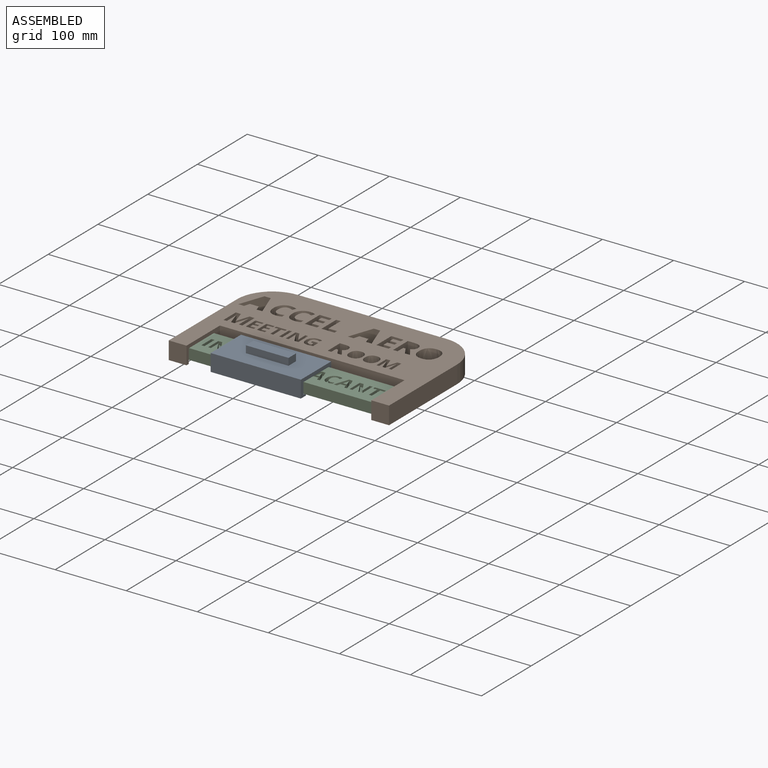
[diagram: assembled view]
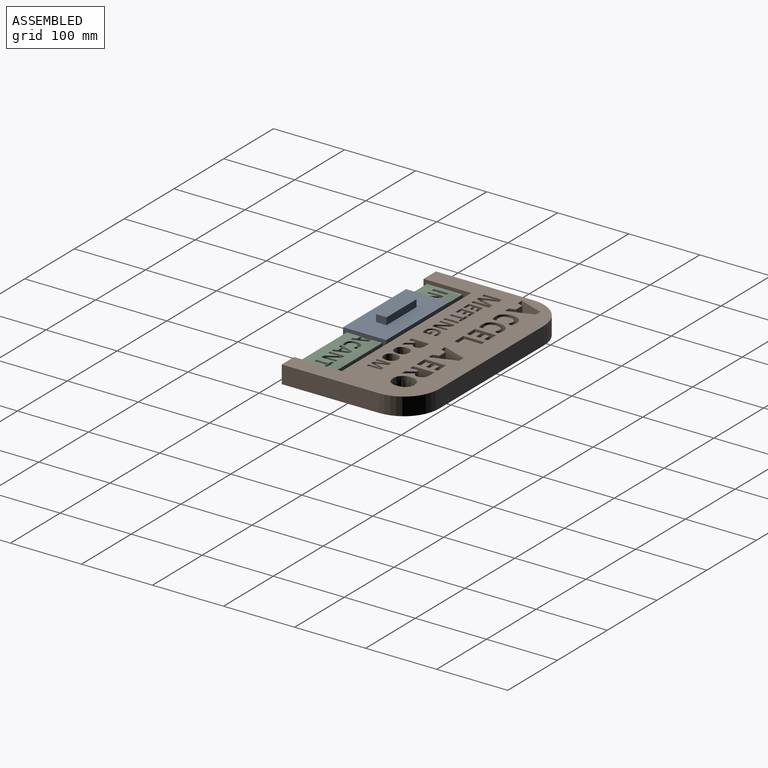
[diagram: assembled view, second angle]
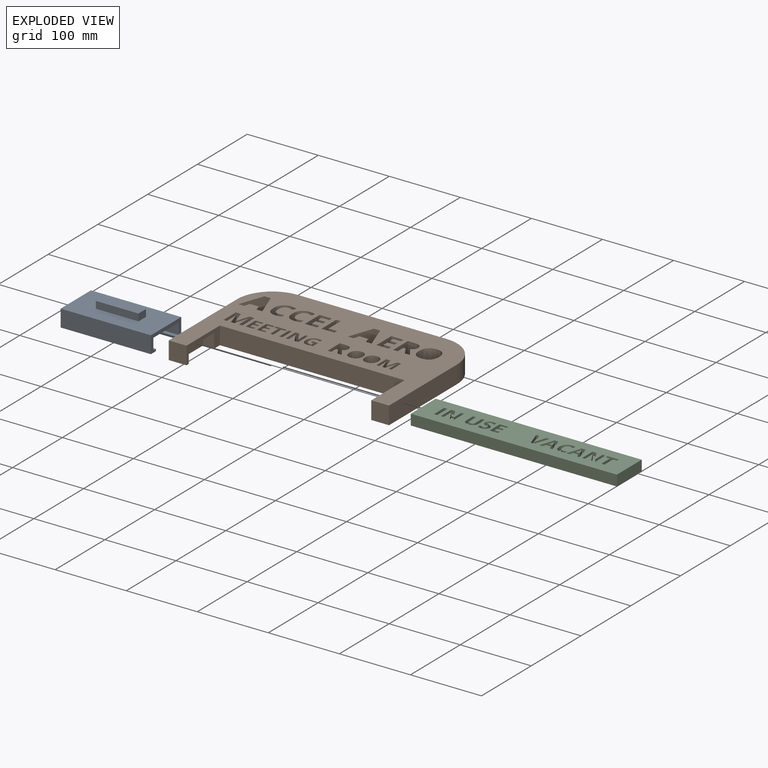
[diagram: exploded view]
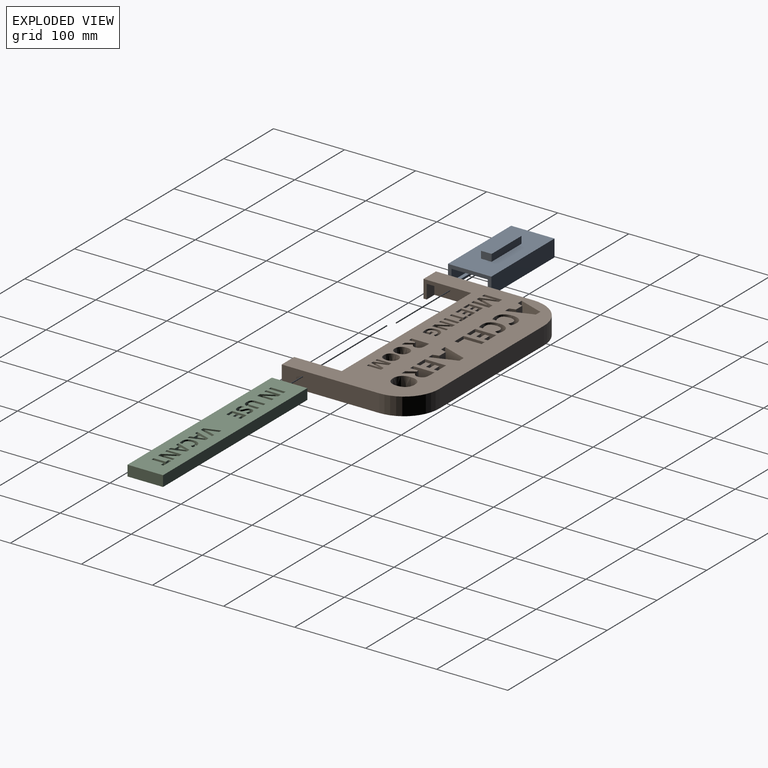
[diagram: exploded view, second angle]
ASSEMBLY  parts=3 mates=2
PART A: 19 faces, bbox 127x61x34 mm
  f0: plane 61x24mm, normal (1,0,0), area 525mm2, adj f2,f3,f4,f5,f6,f7,f8,f9
  f1: plane 61x24mm, normal (-1,0,0), area 525mm2, adj f2,f3,f4,f5,f6,f7,f8,f9
  f2: plane 127x51mm, normal (0,0,1), area 6477mm2, adj f0,f1,f4,f7
  f3: plane 127x61mm, normal (0,0,-1), area 6847mm2, adj f0,f1,f5,f6,f14,f15,f16,f17
  f4: plane 127x16mm, normal (0,1,0), area 2032mm2, adj f0,f1,f2,f8
  f5: plane 127x24mm, normal (0,-1,0), area 3048mm2, adj f0,f1,f3,f10
  f6: plane 127x24mm, normal (0,1,0), area 3048mm2, adj f0,f1,f3,f12
  f7: plane 127x16mm, normal (0,-1,0), area 2032mm2, adj f0,f1,f2,f13
  f8: plane 127x5mm, normal (0,0,-1), area 635mm2, adj f0,f1,f4,f9
  f9: plane 127x3mm, normal (0,1,0), area 381mm2, adj f0,f1,f8,f10
  f10: plane 127x10mm, normal (0,0,1), area 1270mm2, adj f0,f1,f5,f9
  f11: plane 127x3mm, normal (0,-1,0), area 381mm2, adj f0,f1,f12,f13
  f12: plane 127x10mm, normal (0,0,1), area 1270mm2, adj f0,f1,f6,f11
  f13: plane 127x5mm, normal (0,0,-1), area 635mm2, adj f0,f1,f7,f11
  f14: plane 60x10mm, normal (0,-1,0), area 600mm2, adj f3,f15,f17,f18
  f15: plane 15x10mm, normal (-1,0,0), area 150mm2, adj f3,f14,f16,f18
  f16: plane 60x10mm, normal (0,1,0), area 600mm2, adj f3,f15,f17,f18
  f17: plane 15x10mm, normal (1,0,0), area 150mm2, adj f3,f14,f16,f18
  f18: plane 60x15mm, normal (0,0,-1), area 900mm2, adj f14,f15,f16,f17
PART B: 251 faces, bbox 310x187x25 mm
  f0: plane 67x25mm, normal (1,0,0), area 655mm2, adj f213,f237,f239,f240,f243,f244,f245
  f1: plane 67x25mm, normal (-1,0,0), area 655mm2, adj f213,f214,f239,f240,f247,f248,f250
  f2: plane 25x7.93mm, normal (0,1,0), area 198.2mm2, adj f3,f238,f239,f240
  f3: plane 25x8.26mm, normal (0.96,0.29,0), area 215.9mm2, adj f2,f4,f239,f240
  f4: plane 25x12.65mm, normal (0,1,0), area 316.4mm2, adj f3,f5,f239,f240
  f5: plane 25x8.26mm, normal (-0.96,0.29,0), area 215.9mm2, adj f4,f6,f239,f240
  f6: plane 25x7.93mm, normal (0,1,0), area 198.2mm2, adj f5,f7,f239,f240
  f7: plane 34.85x25mm, normal (0.94,-0.33,0), area 923.5mm2, adj f6,f8,f239,f240
  f8: plane 25x8.99mm, normal (0,-1,0), area 224.8mm2, adj f7,f238,f239,f240
  f9: extruded ~25x7.57mm, area 203.4mm2, adj f10,f218,f239,f240
  f10: extruded ~25x7.57mm, area 203.7mm2, adj f9,f11,f239,f240
  f11: extruded ~25x7mm, area 192.7mm2, adj f10,f12,f239,f240
  f12: extruded ~25x7mm, area 192.7mm2, adj f11,f13,f239,f240
  f13: extruded ~25x7.6mm, area 204.3mm2, adj f12,f14,f239,f240
  f14: extruded ~25x7.56mm, area 203.6mm2, adj f13,f15,f239,f240
  f15: extruded ~25x7.02mm, area 192.8mm2, adj f14,f218,f239,f240
  f16: plane 25x5.21mm, normal (-1,0,0), area 130.2mm2, adj f17,f219,f239,f240
  f17: plane 25x17.13mm, normal (0,1,0), area 428.2mm2, adj f16,f18,f239,f240
  f18: plane 29.75x25mm, normal (1,0,0), area 743.7mm2, adj f17,f19,f239,f240
  f19: plane 25x17.13mm, normal (0,-1,0), area 428.2mm2, adj f18,f20,f239,f240
  f20: plane 25x5.17mm, normal (-1,0,0), area 129.2mm2, adj f19,f21,f239,f240
  f21: plane 25x10.82mm, normal (0,1,0), area 270.5mm2, adj f20,f22,f239,f240
  f22: plane 25x6.53mm, normal (-1,0,0), area 163.2mm2, adj f21,f23,f239,f240
  f23: plane 25x10.07mm, normal (0,-1,0), area 251.8mm2, adj f22,f24,f239,f240
  f24: plane 25x5.17mm, normal (-1,0,0), area 129.2mm2, adj f23,f25,f239,f240
  f25: plane 25x10.07mm, normal (0,1,0), area 251.8mm2, adj f24,f26,f239,f240
  f26: plane 25x7.67mm, normal (-1,0,0), area 191.7mm2, adj f25,f219,f239,f240
  f27: plane 25x3.35mm, normal (0,1,0), area 83.8mm2, adj f28,f220,f239,f240
  f28: plane 25x11.41mm, normal (-1,0,0), area 285.3mm2, adj f27,f29,f239,f240
  f29: plane 25x6.31mm, normal (0,1,0), area 157.7mm2, adj f28,f30,f239,f240
  f30: plane 29.75x25mm, normal (1,0,0), area 743.7mm2, adj f29,f31,f239,f240
  f31: plane 25x8.67mm, normal (0,-1,0), area 216.6mm2, adj f30,f32,f239,f240
  f32: extruded ~25x8.97mm, area 234.9mm2, adj f31,f33,f239,f240
  f33: extruded ~25x6.71mm, area 189.8mm2, adj f32,f34,f239,f240
  f34: extruded ~25x4.67mm, area 124.2mm2, adj f33,f35,f239,f240
  f35: extruded ~25x4.09mm, area 131.6mm2, adj f34,f36,f239,f240
  f36: extruded ~25x12.96mm, area 391mm2, adj f35,f37,f239,f240
  f37: plane 25x7mm, normal (0,1,0), area 175mm2, adj f36,f220,f239,f240
  f38: extruded ~25x11.35mm, area 305.1mm2, adj f39,f221,f239,f240
  f39: extruded ~25x11.36mm, area 305.5mm2, adj f38,f40,f239,f240
  f40: extruded ~25x10.5mm, area 289.1mm2, adj f39,f41,f239,f240
  f41: extruded ~25x10.5mm, area 289.1mm2, adj f40,f42,f239,f240
  f42: extruded ~25x11.4mm, area 306.4mm2, adj f41,f43,f239,f240
  f43: extruded ~25x11.34mm, area 305.4mm2, adj f42,f44,f239,f240
  f44: extruded ~25x10.53mm, area 289.2mm2, adj f43,f221,f239,f240
  f45: plane 25x7.93mm, normal (0,1,0), area 198.2mm2, adj f46,f222,f239,f240
  f46: plane 25x8.26mm, normal (0.96,0.29,0), area 215.9mm2, adj f45,f47,f239,f240
  f47: plane 25x12.65mm, normal (0,1,0), area 316.4mm2, adj f46,f48,f239,f240
  f48: plane 25x8.26mm, normal (-0.96,0.29,0), area 215.9mm2, adj f47,f49,f239,f240
  f49: plane 25x7.93mm, normal (0,1,0), area 198.2mm2, adj f48,f50,f239,f240
  f50: plane 34.85x25mm, normal (0.94,-0.33,0), area 923.5mm2, adj f49,f51,f239,f240
  f51: plane 25x8.99mm, normal (0,-1,0), area 224.8mm2, adj f50,f222,f239,f240
  f52: plane 25x3.85mm, normal (0,1,0), area 96.4mm2, adj f53,f223,f239,f240
  f53: plane 25x15.56mm, normal (0.96,0.29,0), area 406.8mm2, adj f52,f54,f239,f240
  f54: plane 25x0.12mm, normal (0,1,0), area 3mm2, adj f53,f55,f239,f240
  f55: extruded ~25x6.33mm, area 158.5mm2, adj f54,f56,f239,f240
  f56: plane 25x9.22mm, normal (-1,0,0), area 230.6mm2, adj f55,f57,f239,f240
  f57: plane 25x3.76mm, normal (0,1,0), area 94mm2, adj f56,f58,f239,f240
  f58: plane 25x19.83mm, normal (1,0,0), area 495.8mm2, adj f57,f59,f239,f240
  f59: plane 25x5.73mm, normal (0,-1,0), area 143.1mm2, adj f58,f60,f239,f240
  f60: plane 25x15.17mm, normal (-0.96,-0.3,0), area 396.9mm2, adj f59,f61,f239,f240
  f61: plane 25x0.08mm, normal (0,-1,0), area 2.1mm2, adj f60,f62,f239,f240
  f62: plane 25x15.17mm, normal (0.95,-0.31,0), area 399mm2, adj f61,f63,f239,f240
  f63: plane 25x5.72mm, normal (0,-1,0), area 143mm2, adj f62,f64,f239,f240
  f64: plane 25x19.83mm, normal (-1,0,0), area 495.8mm2, adj f63,f65,f239,f240
  f65: plane 25x3.92mm, normal (0,1,0), area 98mm2, adj f64,f66,f239,f240
  f66: plane 25x9.39mm, normal (1,0,0), area 234.7mm2, adj f65,f67,f239,f240
  f67: extruded ~25x1.53mm, area 38.3mm2, adj f66,f68,f239,f240
  f68: extruded ~25x4.61mm, area 115.3mm2, adj f67,f69,f239,f240
  f69: plane 25x0.12mm, normal (0,1,0), area 3mm2, adj f68,f223,f239,f240
  f70: extruded ~25x7.57mm, area 203.4mm2, adj f71,f224,f239,f240
  f71: extruded ~25x7.57mm, area 203.7mm2, adj f70,f72,f239,f240
  f72: extruded ~25x7mm, area 192.7mm2, adj f71,f73,f239,f240
  f73: extruded ~25x7mm, area 192.7mm2, adj f72,f74,f239,f240
  f74: extruded ~25x7.6mm, area 204.3mm2, adj f73,f75,f239,f240
  f75: extruded ~25x7.56mm, area 203.6mm2, adj f74,f76,f239,f240
  f76: extruded ~25x7.02mm, area 192.8mm2, adj f75,f224,f239,f240
  f77: plane 25x2.79mm, normal (0,1,0), area 69.9mm2, adj f78,f225,f239,f240
  f78: plane 25x9.51mm, normal (-1,0,0), area 237.8mm2, adj f77,f79,f239,f240
  f79: plane 25x5.26mm, normal (0,1,0), area 131.4mm2, adj f78,f80,f239,f240
  f80: plane 25x24.79mm, normal (1,0,0), area 619.7mm2, adj f79,f81,f239,f240
  f81: plane 25x7.22mm, normal (0,-1,0), area 180.5mm2, adj f80,f82,f239,f240
  f82: extruded ~25x7.48mm, area 195.8mm2, adj f81,f83,f239,f240
  f83: extruded ~25x5.59mm, area 158.2mm2, adj f82,f84,f239,f240
  f84: extruded ~25x3.89mm, area 103.5mm2, adj f83,f85,f239,f240
  f85: extruded ~25x3.41mm, area 109.6mm2, adj f84,f86,f239,f240
  f86: extruded ~25x10.8mm, area 325.8mm2, adj f85,f87,f239,f240
  f87: plane 25x5.83mm, normal (0,1,0), area 145.8mm2, adj f86,f225,f239,f240
  f88: plane 25x3.5mm, normal (1,0,0), area 87.6mm2, adj f89,f226,f239,f240
  f89: plane 25x7.87mm, normal (0,-1,0), area 196.7mm2, adj f88,f90,f239,f240
  f90: plane 25x10.28mm, normal (-1,0,0), area 257.1mm2, adj f89,f91,f239,f240
  f91: extruded ~25x3.6mm, area 92.8mm2, adj f90,f92,f239,f240
  f92: extruded ~25x3.45mm, area 86.6mm2, adj f91,f93,f239,f240
  f93: extruded ~25x6.86mm, area 189.4mm2, adj f92,f94,f239,f240
  f94: extruded ~25x7.58mm, area 203mm2, adj f93,f95,f239,f240
  f95: extruded ~25x7.49mm, area 205mm2, adj f94,f96,f239,f240
  f96: extruded ~25x7.61mm, area 207.1mm2, adj f95,f97,f239,f240
  f97: extruded ~25x5.89mm, area 151.4mm2, adj f96,f98,f239,f240
  f98: plane 25x3.36mm, normal (-0.92,0.38,0), area 91.1mm2, adj f97,f99,f239,f240
  f99: extruded ~25x4.52mm, area 117.2mm2, adj f98,f100,f239,f240
  f100: extruded ~25x4.37mm, area 122.2mm2, adj f99,f101,f239,f240
  f101: extruded ~25x4.92mm, area 132.7mm2, adj f100,f102,f239,f240
  f102: extruded ~25x4.93mm, area 129.9mm2, adj f101,f103,f239,f240
  f103: extruded ~25x3.84mm, area 109.1mm2, adj f102,f104,f239,f240
  f104: extruded ~25x2.67mm, area 67.3mm2, adj f103,f105,f239,f240
  f105: plane 25x4.14mm, normal (1,0,0), area 103.4mm2, adj f104,f226,f239,f240
  f106: plane 25x19.83mm, normal (-1,0,0), area 495.8mm2, adj f107,f227,f239,f240
  f107: plane 25x5.34mm, normal (0,1,0), area 133.6mm2, adj f106,f108,f239,f240
  f108: plane 25x15mm, normal (0.87,0.5,0), area 432.6mm2, adj f107,f109,f239,f240
  f109: plane 25x0.12mm, normal (0,1,0), area 3mm2, adj f108,f110,f239,f240
  f110: extruded ~25x5.67mm, area 141.9mm2, adj f109,f111,f239,f240
  f111: plane 25x9.33mm, normal (-1,0,0), area 233.3mm2, adj f110,f112,f239,f240
  f112: plane 25x3.76mm, normal (0,1,0), area 94mm2, adj f111,f113,f239,f240
  f113: plane 25x19.83mm, normal (1,0,0), area 495.8mm2, adj f112,f114,f239,f240
  f114: plane 25x5.3mm, normal (0,-1,0), area 132.6mm2, adj f113,f115,f239,f240
  f115: plane 25x14.85mm, normal (-0.87,-0.5,0), area 429.2mm2, adj f114,f116,f239,f240
  f116: plane 25x0.1mm, normal (0,-1,0), area 2.4mm2, adj f115,f117,f239,f240
  f117: extruded ~25x5.46mm, area 136.7mm2, adj f116,f118,f239,f240
  f118: plane 25x9.39mm, normal (1,0,0), area 234.7mm2, adj f117,f227,f239,f240
  f119: plane 25x4.21mm, normal (0,1,0), area 105.1mm2, adj f120,f228,f239,f240
  f120: plane 25x19.83mm, normal (1,0,0), area 495.8mm2, adj f119,f121,f239,f240
  f121: plane 25x4.21mm, normal (0,-1,0), area 105.1mm2, adj f120,f228,f239,f240
  f122: plane 25x16.33mm, normal (-1,0,0), area 408.3mm2, adj f123,f229,f239,f240
  f123: plane 25x4.21mm, normal (0,1,0), area 105.1mm2, adj f122,f124,f239,f240
  f124: plane 25x16.33mm, normal (1,0,0), area 408.3mm2, adj f123,f125,f239,f240
  f125: plane 25x5.39mm, normal (0,1,0), area 134.7mm2, adj f124,f126,f239,f240
  f126: plane 25x3.5mm, normal (1,0,0), area 87.5mm2, adj f125,f127,f239,f240
  f127: plane 25x14.97mm, normal (0,-1,0), area 374.3mm2, adj f126,f128,f239,f240
  f128: plane 25x3.5mm, normal (-1,0,0), area 87.5mm2, adj f127,f229,f239,f240
  f129: plane 25x3.47mm, normal (-1,0,0), area 86.8mm2, adj f130,f230,f239,f240
  f130: plane 25x11.42mm, normal (0,1,0), area 285.5mm2, adj f129,f131,f239,f240
  f131: plane 25x19.83mm, normal (1,0,0), area 495.8mm2, adj f130,f132,f239,f240
  f132: plane 25x11.42mm, normal (0,-1,0), area 285.5mm2, adj f131,f133,f239,f240
  f133: plane 25x3.45mm, normal (-1,0,0), area 86.2mm2, adj f132,f134,f239,f240
  f134: plane 25x7.21mm, normal (0,1,0), area 180.3mm2, adj f133,f135,f239,f240
  f135: plane 25x4.35mm, normal (-1,0,0), area 108.8mm2, adj f134,f136,f239,f240
  f136: plane 25x6.71mm, normal (0,-1,0), area 167.9mm2, adj f135,f137,f239,f240
  f137: plane 25x3.45mm, normal (-1,0,0), area 86.2mm2, adj f136,f138,f239,f240
  f138: plane 25x6.71mm, normal (0,1,0), area 167.9mm2, adj f137,f139,f239,f240
  f139: plane 25x5.11mm, normal (-1,0,0), area 127.8mm2, adj f138,f230,f239,f240
  f140: plane 25x3.47mm, normal (-1,0,0), area 86.8mm2, adj f141,f231,f239,f240
  f141: plane 25x11.42mm, normal (0,1,0), area 285.5mm2, adj f140,f142,f239,f240
  f142: plane 25x19.83mm, normal (1,0,0), area 495.8mm2, adj f141,f143,f239,f240
  f143: plane 25x11.42mm, normal (0,-1,0), area 285.5mm2, adj f142,f144,f239,f240
  f144: plane 25x3.45mm, normal (-1,0,0), area 86.2mm2, adj f143,f145,f239,f240
  f145: plane 25x7.21mm, normal (0,1,0), area 180.3mm2, adj f144,f146,f239,f240
  f146: plane 25x4.35mm, normal (-1,0,0), area 108.8mm2, adj f145,f147,f239,f240
  f147: plane 25x6.71mm, normal (0,-1,0), area 167.9mm2, adj f146,f148,f239,f240
  f148: plane 25x3.45mm, normal (-1,0,0), area 86.2mm2, adj f147,f149,f239,f240
  f149: plane 25x6.71mm, normal (0,1,0), area 167.9mm2, adj f148,f150,f239,f240
  f150: plane 25x5.11mm, normal (-1,0,0), area 127.8mm2, adj f149,f231,f239,f240
  f151: plane 25x4.82mm, normal (0,1,0), area 120.4mm2, adj f152,f232,f239,f240
  f152: plane 25x19.44mm, normal (0.96,0.29,0), area 508.5mm2, adj f151,f153,f239,f240
  f153: plane 25x0.15mm, normal (0,1,0), area 3.8mm2, adj f152,f154,f239,f240
  f154: extruded ~25x7.92mm, area 198.1mm2, adj f153,f155,f239,f240
  f155: plane 25x11.53mm, normal (-1,0,0), area 288.2mm2, adj f154,f156,f239,f240
  f156: plane 25x4.7mm, normal (0,1,0), area 117.5mm2, adj f155,f157,f239,f240
  f157: plane 25x24.79mm, normal (1,0,0), area 619.7mm2, adj f156,f158,f239,f240
  f158: plane 25x7.16mm, normal (0,-1,0), area 178.9mm2, adj f157,f159,f239,f240
  f159: plane 25x18.96mm, normal (-0.96,-0.3,0), area 496.1mm2, adj f158,f160,f239,f240
  f160: plane 25x0.1mm, normal (0,-1,0), area 2.6mm2, adj f159,f161,f239,f240
  f161: plane 25x18.96mm, normal (0.95,-0.31,0), area 498.8mm2, adj f160,f162,f239,f240
  f162: plane 25x7.15mm, normal (0,-1,0), area 178.8mm2, adj f161,f163,f239,f240
  f163: plane 25x24.79mm, normal (-1,0,0), area 619.7mm2, adj f162,f164,f239,f240
  f164: plane 25x4.9mm, normal (0,1,0), area 122.5mm2, adj f163,f165,f239,f240
  f165: plane 25x11.74mm, normal (1,0,0), area 293.4mm2, adj f164,f166,f239,f240
  f166: extruded ~25x1.92mm, area 47.9mm2, adj f165,f167,f239,f240
  f167: extruded ~25x5.76mm, area 144.2mm2, adj f166,f168,f239,f240
  f168: plane 25x0.15mm, normal (0,1,0), area 3.8mm2, adj f167,f232,f239,f240
  f169: plane 25x18.37mm, normal (0,1,0), area 459.3mm2, adj f170,f233,f239,f240
  f170: plane 29.75x25mm, normal (1,0,0), area 743.7mm2, adj f169,f171,f239,f240
  f171: plane 25x6.31mm, normal (0,-1,0), area 157.7mm2, adj f170,f172,f239,f240
  f172: plane 25x24.54mm, normal (-1,0,0), area 613.4mm2, adj f171,f173,f239,f240
  f173: plane 25x12.06mm, normal (0,-1,0), area 301.6mm2, adj f172,f233,f239,f240
  f174: plane 25x5.21mm, normal (-1,0,0), area 130.2mm2, adj f175,f234,f239,f240
  f175: plane 25x17.13mm, normal (0,1,0), area 428.2mm2, adj f174,f176,f239,f240
  f176: plane 29.75x25mm, normal (1,0,0), area 743.7mm2, adj f175,f177,f239,f240
  f177: plane 25x17.13mm, normal (0,-1,0), area 428.2mm2, adj f176,f178,f239,f240
  f178: plane 25x5.17mm, normal (-1,0,0), area 129.2mm2, adj f177,f179,f239,f240
  f179: plane 25x10.82mm, normal (0,1,0), area 270.5mm2, adj f178,f180,f239,f240
  f180: plane 25x6.53mm, normal (-1,0,0), area 163.2mm2, adj f179,f181,f239,f240
  f181: plane 25x10.07mm, normal (0,-1,0), area 251.8mm2, adj f180,f182,f239,f240
  f182: plane 25x5.17mm, normal (-1,0,0), area 129.2mm2, adj f181,f183,f239,f240
  f183: plane 25x10.07mm, normal (0,1,0), area 251.8mm2, adj f182,f184,f239,f240
  f184: plane 25x7.67mm, normal (-1,0,0), area 191.7mm2, adj f183,f234,f239,f240
  f185: extruded ~25x3.31mm, area 84.5mm2, adj f186,f235,f239,f240
  f186: extruded ~25x5.51mm, area 159.6mm2, adj f185,f187,f239,f240
  f187: extruded ~25x7.45mm, area 195.8mm2, adj f186,f188,f239,f240
  f188: extruded ~25x9.95mm, area 354.8mm2, adj f187,f189,f239,f240
  f189: extruded ~25x7.58mm, area 194.5mm2, adj f188,f190,f239,f240
  f190: plane 25x5.29mm, normal (-1,0,0), area 132.2mm2, adj f189,f191,f239,f240
  f191: extruded ~25x8.18mm, area 209.4mm2, adj f190,f192,f239,f240
  f192: extruded ~25x9.93mm, area 275.8mm2, adj f191,f193,f239,f240
  f193: extruded ~25x11.3mm, area 301.8mm2, adj f192,f194,f239,f240
  f194: extruded ~25x8.13mm, area 209.4mm2, adj f193,f195,f239,f240
  f195: extruded ~25x5.35mm, area 183.3mm2, adj f194,f196,f239,f240
  f196: extruded ~25x7.42mm, area 193.4mm2, adj f195,f197,f239,f240
  f197: extruded ~25x8.7mm, area 225.7mm2, adj f196,f198,f239,f240
  f198: plane 25x5.13mm, normal (-0.93,0.37,0), area 137.9mm2, adj f197,f235,f239,f240
  f199: extruded ~25x3.31mm, area 84.5mm2, adj f200,f236,f239,f240
  f200: extruded ~25x5.51mm, area 159.6mm2, adj f199,f201,f239,f240
  f201: extruded ~25x7.45mm, area 195.8mm2, adj f200,f202,f239,f240
  f202: extruded ~25x9.95mm, area 354.8mm2, adj f201,f203,f239,f240
  f203: extruded ~25x7.58mm, area 194.5mm2, adj f202,f204,f239,f240
  f204: plane 25x5.29mm, normal (-1,0,0), area 132.2mm2, adj f203,f205,f239,f240
  f205: extruded ~25x8.18mm, area 209.4mm2, adj f204,f206,f239,f240
  f206: extruded ~25x9.93mm, area 275.8mm2, adj f205,f207,f239,f240
  f207: extruded ~25x11.3mm, area 301.8mm2, adj f206,f208,f239,f240
  f208: extruded ~25x8.13mm, area 209.4mm2, adj f207,f209,f239,f240
  f209: extruded ~25x5.35mm, area 183.3mm2, adj f208,f210,f239,f240
  f210: extruded ~25x7.42mm, area 193.4mm2, adj f209,f211,f239,f240
  f211: extruded ~25x8.7mm, area 225.7mm2, adj f210,f212,f239,f240
  f212: plane 25x5.13mm, normal (-0.93,0.37,0), area 137.9mm2, adj f211,f236,f239,f240
  f213: plane 260x25mm, normal (0,-1,0), area 6500mm2, adj f0,f1,f239,f240
  f214: plane 25x25mm, normal (0,-1,0), area 625mm2, adj f1,f215,f239,f240
  f215: plane 137x25mm, normal (1,0,0), area 3425mm2, adj f214,f239,f240,f241
  f216: plane 210x25mm, normal (0,1,0), area 5250mm2, adj f239,f240,f241,f242
  f217: plane 137x25mm, normal (-1,0,0), area 3425mm2, adj f237,f239,f240,f242
  f218: extruded ~25x6.99mm, area 192.5mm2, adj f9,f15,f239,f240
  f219: plane 25x10.82mm, normal (0,-1,0), area 270.5mm2, adj f16,f26,f239,f240
  f220: plane 25x11.41mm, normal (0.85,0.53,0), area 336.1mm2, adj f27,f37,f239,f240
  f221: extruded ~25x10.49mm, area 288.7mm2, adj f38,f44,f239,f240
  f222: plane 34.85x25mm, normal (-0.94,-0.33,0), area 923.9mm2, adj f45,f51,f239,f240
  f223: plane 25x15.53mm, normal (-0.95,0.31,0), area 408.7mm2, adj f52,f69,f239,f240
  f224: extruded ~25x6.99mm, area 192.5mm2, adj f70,f76,f239,f240
  f225: plane 25x9.51mm, normal (0.85,0.53,0), area 280.1mm2, adj f77,f87,f239,f240
  f226: plane 25x3.76mm, normal (0,1,0), area 94mm2, adj f88,f105,f239,f240
  f227: plane 25x3.78mm, normal (0,-1,0), area 94.6mm2, adj f106,f118,f239,f240
  f228: plane 25x19.83mm, normal (-1,0,0), area 495.8mm2, adj f119,f121,f239,f240
  f229: plane 25x5.38mm, normal (0,1,0), area 134.5mm2, adj f122,f128,f239,f240
  f230: plane 25x7.21mm, normal (0,-1,0), area 180.3mm2, adj f129,f139,f239,f240
  f231: plane 25x7.21mm, normal (0,-1,0), area 180.3mm2, adj f140,f150,f239,f240
  f232: plane 25x19.41mm, normal (-0.95,0.31,0), area 510.9mm2, adj f151,f168,f239,f240
  f233: plane 25x5.21mm, normal (-1,0,0), area 130.2mm2, adj f169,f173,f239,f240
  f234: plane 25x10.82mm, normal (0,-1,0), area 270.5mm2, adj f174,f184,f239,f240
  f235: extruded ~25x3.36mm, area 90.9mm2, adj f185,f198,f239,f240
  f236: extruded ~25x3.36mm, area 90.9mm2, adj f199,f212,f239,f240
  f237: plane 25x25mm, normal (0,-1,0), area 625mm2, adj f0,f217,f239,f240
  f238: plane 34.85x25mm, normal (-0.94,-0.33,0), area 923.9mm2, adj f2,f8,f239,f240
  f239: plane 310x187mm, normal (0,0,1), area 32864.4mm2, adj f0,f1,f2,f3,f4,f5,f6,f7
  f240: plane 310x187mm, normal (0,0,-1), area 31283.4mm2, adj f0,f1,f2,f3,f4,f5,f6,f7
  f241: cylinder r=50mm len=50mm, axis (0,0,-1), area 1963.5mm2, adj f215,f216,f239,f240
  f242: cylinder r=50mm len=50mm, axis (0,0,-1), area 1963.5mm2, adj f216,f217,f239,f240
  f243: plane 51x15.5mm, normal (0,0,-1), area 790.5mm2, adj f0,f244,f245,f246
  f244: plane 20x15.5mm, normal (0,-1,0), area 310mm2, adj f0,f240,f243,f246
  f245: plane 20x15.5mm, normal (0,1,0), area 310mm2, adj f0,f240,f243,f246
  f246: plane 51x20mm, normal (1,0,0), area 1020mm2, adj f240,f243,f244,f245
  f247: plane 51x15.5mm, normal (0,0,-1), area 790.5mm2, adj f1,f248,f249,f250
  f248: plane 20x15.5mm, normal (0,-1,0), area 310mm2, adj f1,f240,f247,f249
  f249: plane 51x20mm, normal (-1,0,0), area 1020mm2, adj f240,f247,f248,f250
  f250: plane 20x15.5mm, normal (0,1,0), area 310mm2, adj f1,f240,f247,f249
PART C: 163 faces, bbox 290x50x15 mm
  f0: plane 290x50mm, normal (0,0,1), area 12533.3mm2, adj f1,f2,f3,f4,f6,f7,f8,f9
  f1: plane 290x15mm, normal (0,-1,0), area 4350mm2, adj f0,f2,f4,f5
  f2: plane 50x15mm, normal (1,0,0), area 750mm2, adj f0,f1,f3,f5
  f3: plane 290x15mm, normal (0,1,0), area 4350mm2, adj f0,f2,f4,f5
  f4: plane 50x15mm, normal (-1,0,0), area 750mm2, adj f0,f1,f3,f5
  f5: plane 290x50mm, normal (0,0,-1), area 14500mm2, adj f1,f2,f3,f4
  f6: plane 5.54x5mm, normal (0,1,0), area 27.7mm2, adj f0,f7,f19,f20
  f7: plane 20.58x5mm, normal (-1,0,0), area 102.9mm2, adj f0,f6,f8,f20
  f8: plane 5x3.93mm, normal (0,-1,0), area 19.6mm2, adj f0,f7,f9,f20
  f9: plane 9.74x5mm, normal (1,0,0), area 48.7mm2, adj f0,f8,f10,f20
  f10: extruded ~5.67x5mm, area 28.4mm2, adj f0,f9,f11,f20
  f11: plane 5x0.1mm, normal (0,-1,0), area 0.5mm2, adj f0,f10,f12,f20
  f12: plane 15.41x8.94mm, normal (-0.87,-0.5,0), area 89.1mm2, adj f0,f11,f13,f20
  f13: plane 5.5x5mm, normal (0,-1,0), area 27.5mm2, adj f0,f12,f14,f20
  f14: plane 20.58x5mm, normal (1,0,0), area 102.9mm2, adj f0,f13,f15,f20
  f15: plane 5x3.9mm, normal (0,1,0), area 19.5mm2, adj f0,f14,f16,f20
  f16: plane 9.68x5mm, normal (-1,0,0), area 48.4mm2, adj f0,f15,f17,f20
  f17: extruded ~5.88x5mm, area 29.4mm2, adj f0,f16,f18,f20
  f18: plane 5x0.13mm, normal (0,1,0), area 0.6mm2, adj f0,f17,f19,f20
  f19: plane 15.56x8.95mm, normal (0.87,0.5,0), area 89.8mm2, adj f0,f6,f18,f20
  f20: plane 20.58x18.25mm, normal (0,0,1), area 239.9mm2, adj f6,f7,f8,f9,f10,f11,f12,f13
  f21: plane 13.31x5mm, normal (-1,0,0), area 66.6mm2, adj f0,f22,f35,f36
  f22: plane 5x4.35mm, normal (0,-1,0), area 21.8mm2, adj f0,f21,f23,f36
  f23: plane 12.57x5mm, normal (1,0,0), area 62.8mm2, adj f0,f22,f24,f36
  f24: extruded ~5x3.51mm, area 18.6mm2, adj f0,f23,f25,f36
  f25: extruded ~5x3.1mm, area 17mm2, adj f0,f24,f26,f36
  f26: extruded ~5x3.17mm, area 17.3mm2, adj f0,f25,f27,f36
  f27: extruded ~5x3.49mm, area 18.5mm2, adj f0,f26,f28,f36
  f28: plane 12.6x5mm, normal (-1,0,0), area 63mm2, adj f0,f27,f29,f36
  f29: plane 5x4.35mm, normal (0,-1,0), area 21.7mm2, adj f0,f28,f30,f36
  f30: plane 13.26x5mm, normal (1,0,0), area 66.3mm2, adj f0,f29,f31,f36
  f31: extruded ~5.57x5mm, area 30.8mm2, adj f0,f30,f32,f36
  f32: extruded ~6.16x5mm, area 33.2mm2, adj f0,f31,f33,f36
  f33: extruded ~5x4.56mm, area 23.4mm2, adj f0,f32,f34,f36
  f34: extruded ~5x2.95mm, area 20.1mm2, adj f0,f33,f35,f36
  f35: extruded ~5x4mm, area 20.9mm2, adj f0,f21,f34,f36
  f36: plane 20.86x16.89mm, normal (0,0,1), area 193.7mm2, adj f21,f22,f23,f24,f25,f26,f27,f28
  f37: extruded ~5x4.39mm, area 25mm2, adj f0,f38,f64,f65
  f38: extruded ~5x3.4mm, area 18.1mm2, adj f0,f37,f39,f65
  f39: extruded ~5x3.96mm, area 24.3mm2, adj f0,f38,f40,f65
  f40: extruded ~5x2.76mm, area 15.6mm2, adj f0,f39,f41,f65
  f41: extruded ~5x0.85mm, area 6mm2, adj f0,f40,f42,f65
  f42: extruded ~5x1.01mm, area 5.3mm2, adj f0,f41,f43,f65
  f43: extruded ~5x1.5mm, area 8.5mm2, adj f0,f42,f44,f65
  f44: extruded ~5x1.9mm, area 10.1mm2, adj f0,f43,f45,f65
  f45: extruded ~5x2.12mm, area 10.7mm2, adj f0,f44,f46,f65
  f46: extruded ~5x2.72mm, area 14.4mm2, adj f0,f45,f47,f65
  f47: plane 5x3.4mm, normal (-0.92,0.38,0), area 18.4mm2, adj f0,f46,f48,f65
  f48: extruded ~5x3.05mm, area 16.2mm2, adj f0,f47,f49,f65
  f49: extruded ~5x3.06mm, area 15.5mm2, adj f0,f48,f50,f65
  f50: extruded ~5.12x5mm, area 27.3mm2, adj f0,f49,f51,f65
  f51: extruded ~5x4.29mm, area 24.2mm2, adj f0,f50,f52,f65
  f52: extruded ~5x2.53mm, area 13.1mm2, adj f0,f51,f53,f65
  f53: extruded ~5x1.9mm, area 12.2mm2, adj f0,f52,f54,f65
  f54: extruded ~5x2.83mm, area 16.5mm2, adj f0,f53,f55,f65
  f55: extruded ~5x2.67mm, area 15.1mm2, adj f0,f54,f56,f65
  f56: extruded ~5x0.99mm, area 6.8mm2, adj f0,f55,f57,f65
  f57: extruded ~5x1.08mm, area 5.7mm2, adj f0,f56,f58,f65
  f58: extruded ~5x1.63mm, area 9.4mm2, adj f0,f57,f59,f65
  f59: extruded ~5x2.2mm, area 11.5mm2, adj f0,f58,f60,f65
  f60: extruded ~5x2.64mm, area 13.4mm2, adj f0,f59,f61,f65
  f61: extruded ~5x3.52mm, area 18.8mm2, adj f0,f60,f62,f65
  f62: plane 5x4.05mm, normal (1,0,0), area 20.3mm2, adj f0,f61,f63,f65
  f63: extruded ~5.83x5mm, area 30.1mm2, adj f0,f62,f64,f65
  f64: extruded ~5.58x5mm, area 29.6mm2, adj f0,f37,f63,f65
  f65: plane 21.15x13.41mm, normal (0,0,1), area 159.7mm2, adj f37,f38,f39,f40,f41,f42,f43,f44
  f66: plane 11.85x5mm, normal (0,1,0), area 59.2mm2, adj f0,f67,f77,f78
  f67: plane 5x3.6mm, normal (-1,0,0), area 18mm2, adj f0,f66,f68,f78
  f68: plane 7.49x5mm, normal (0,-1,0), area 37.4mm2, adj f0,f67,f69,f78
  f69: plane 5.31x5mm, normal (-1,0,0), area 26.5mm2, adj f0,f68,f70,f78
  f70: plane 6.97x5mm, normal (0,1,0), area 34.8mm2, adj f0,f69,f71,f78
  f71: plane 5x3.58mm, normal (-1,0,0), area 17.9mm2, adj f0,f70,f72,f78
  f72: plane 6.97x5mm, normal (0,-1,0), area 34.8mm2, adj f0,f71,f73,f78
  f73: plane 5x4.52mm, normal (-1,0,0), area 22.6mm2, adj f0,f72,f74,f78
  f74: plane 7.49x5mm, normal (0,1,0), area 37.4mm2, adj f0,f73,f75,f78
  f75: plane 5x3.58mm, normal (-1,0,0), area 17.9mm2, adj f0,f74,f76,f78
  f76: plane 11.85x5mm, normal (0,-1,0), area 59.2mm2, adj f0,f75,f77,f78
  f77: plane 20.58x5mm, normal (1,0,0), area 102.9mm2, adj f0,f66,f76,f78
  f78: plane 20.58x11.85mm, normal (0,0,1), area 168.4mm2, adj f66,f67,f68,f69,f70,f71,f72,f73
  f79: plane 5x4.4mm, normal (0,-1,0), area 22mm2, adj f0,f80,f88,f89
  f80: plane 12.25x5mm, normal (0.95,-0.3,0), area 64.2mm2, adj f0,f79,f81,f89
  f81: extruded ~5x4.53mm, area 23.3mm2, adj f0,f80,f82,f89
  f82: extruded ~5x2mm, area 10.2mm2, adj f0,f81,f83,f89
  f83: extruded ~5x2.53mm, area 13.1mm2, adj f0,f82,f84,f89
  f84: plane 12.25x5mm, normal (-0.95,-0.3,0), area 64.2mm2, adj f0,f83,f85,f89
  f85: plane 5x4.4mm, normal (0,-1,0), area 22mm2, adj f0,f84,f86,f89
  f86: plane 20.58x6.98mm, normal (0.95,0.32,0), area 108.6mm2, adj f0,f85,f87,f89
  f87: plane 5x4.76mm, normal (0,1,0), area 23.8mm2, adj f0,f86,f88,f89
  f88: plane 20.58x6.99mm, normal (-0.95,0.32,0), area 108.7mm2, adj f0,f79,f87,f89
  f89: plane 20.58x18.73mm, normal (0,0,1), area 163.2mm2, adj f79,f80,f81,f82,f83,f84,f85,f86
  f90: extruded ~5x3.81mm, area 22.1mm2, adj f0,f91,f104,f105
  f91: extruded ~5x2.29mm, area 11.7mm2, adj f0,f90,f92,f105
  f92: extruded ~5x2.32mm, area 12.6mm2, adj f0,f91,f93,f105
  f93: plane 5x3.55mm, normal (-0.93,0.37,0), area 19.1mm2, adj f0,f92,f94,f105
  f94: extruded ~6.02x5mm, area 31.2mm2, adj f0,f93,f95,f105
  f95: extruded ~5.13x5mm, area 26.8mm2, adj f0,f94,f96,f105
  f96: extruded ~5x3.7mm, area 25.4mm2, adj f0,f95,f97,f105
  f97: extruded ~5.63x5mm, area 29mm2, adj f0,f96,f98,f105
  f98: extruded ~7.82x5mm, area 41.8mm2, adj f0,f97,f99,f105
  f99: extruded ~6.87x5mm, area 38.2mm2, adj f0,f98,f100,f105
  f100: extruded ~5.66x5mm, area 29mm2, adj f0,f99,f101,f105
  f101: plane 5x3.66mm, normal (-1,0,0), area 18.3mm2, adj f0,f100,f102,f105
  f102: extruded ~5.25x5mm, area 26.9mm2, adj f0,f101,f103,f105
  f103: extruded ~6.88x5.17mm, area 49.1mm2, adj f0,f102,f104,f105
  f104: extruded ~5.16x5mm, area 27.1mm2, adj f0,f90,f103,f105
  f105: plane 21.15x15.68mm, normal (0,0,1), area 148.7mm2, adj f90,f91,f92,f93,f94,f95,f96,f97
  f106: plane 5.54x5mm, normal (0,1,0), area 27.7mm2, adj f0,f107,f119,f120
  f107: plane 20.58x5mm, normal (-1,0,0), area 102.9mm2, adj f0,f106,f108,f120
  f108: plane 5x3.93mm, normal (0,-1,0), area 19.6mm2, adj f0,f107,f109,f120
  f109: plane 9.74x5mm, normal (1,0,0), area 48.7mm2, adj f0,f108,f110,f120
  f110: extruded ~5.67x5mm, area 28.4mm2, adj f0,f109,f111,f120
  f111: plane 5x0.1mm, normal (0,-1,0), area 0.5mm2, adj f0,f110,f112,f120
  f112: plane 15.41x8.94mm, normal (-0.87,-0.5,0), area 89.1mm2, adj f0,f111,f113,f120
  f113: plane 5.5x5mm, normal (0,-1,0), area 27.5mm2, adj f0,f112,f114,f120
  f114: plane 20.58x5mm, normal (1,0,0), area 102.9mm2, adj f0,f113,f115,f120
  f115: plane 5x3.9mm, normal (0,1,0), area 19.5mm2, adj f0,f114,f116,f120
  f116: plane 9.68x5mm, normal (-1,0,0), area 48.4mm2, adj f0,f115,f117,f120
  f117: extruded ~5.88x5mm, area 29.4mm2, adj f0,f116,f118,f120
  f118: plane 5x0.13mm, normal (0,1,0), area 0.6mm2, adj f0,f117,f119,f120
  f119: plane 15.56x8.95mm, normal (0.87,0.5,0), area 89.8mm2, adj f0,f106,f118,f120
  f120: plane 20.58x18.25mm, normal (0,0,1), area 239.9mm2, adj f106,f107,f108,f109,f110,f111,f112,f113
  f121: plane 5x4.36mm, normal (0,1,0), area 21.8mm2, adj f0,f122,f128,f129
  f122: plane 16.95x5mm, normal (-1,0,0), area 84.7mm2, adj f0,f121,f123,f129
  f123: plane 5.58x5mm, normal (0,1,0), area 27.9mm2, adj f0,f122,f124,f129
  f124: plane 5x3.63mm, normal (-1,0,0), area 18.1mm2, adj f0,f123,f125,f129
  f125: plane 15.54x5mm, normal (0,-1,0), area 77.7mm2, adj f0,f124,f126,f129
  f126: plane 5x3.63mm, normal (1,0,0), area 18.1mm2, adj f0,f125,f127,f129
  f127: plane 5.59x5mm, normal (0,1,0), area 27.9mm2, adj f0,f126,f128,f129
  f128: plane 16.95x5mm, normal (1,0,0), area 84.7mm2, adj f0,f121,f127,f129
  f129: plane 20.58x15.54mm, normal (0,0,1), area 130.4mm2, adj f121,f122,f123,f124,f125,f126,f127,f128
  f130: extruded ~7.53x5mm, area 39.4mm2, adj f131,f141,f142,f161
  f131: plane 5.36x5mm, normal (0,-1,0), area 26.8mm2, adj f130,f132,f142,f161
  f132: extruded ~8.91x5mm, area 46.5mm2, adj f131,f141,f142,f161
  f133: plane 5x4.9mm, normal (0.96,0.29,0), area 25.6mm2, adj f0,f134,f140,f142
  f134: plane 5x4.7mm, normal (0,1,0), area 23.5mm2, adj f0,f133,f135,f142
  f135: plane 20.66x7.29mm, normal (-0.94,-0.33,0), area 109.6mm2, adj f0,f134,f136,f142
  f136: plane 5.33x5mm, normal (0,-1,0), area 26.7mm2, adj f0,f135,f137,f142
  f137: plane 20.66x7.26mm, normal (0.94,-0.33,0), area 109.5mm2, adj f0,f136,f138,f142
  f138: plane 5x4.7mm, normal (0,1,0), area 23.5mm2, adj f0,f137,f139,f142
  f139: plane 5x4.9mm, normal (-0.96,0.29,0), area 25.6mm2, adj f0,f138,f140,f142
  f140: plane 7.5x5mm, normal (0,1,0), area 37.5mm2, adj f0,f133,f139,f142
  f141: extruded ~5x1.38mm, area 7.1mm2, adj f130,f132,f142,f161
  f142: plane 20.66x19.89mm, normal (0,0,1), area 193.1mm2, adj f130,f131,f132,f133,f134,f135,f136,f137
  f143: extruded ~7.53x5mm, area 39.4mm2, adj f144,f154,f155,f162
  f144: plane 5.36x5mm, normal (0,-1,0), area 26.8mm2, adj f143,f145,f155,f162
  f145: extruded ~8.91x5mm, area 46.5mm2, adj f144,f154,f155,f162
  f146: plane 5x4.9mm, normal (0.96,0.29,0), area 25.6mm2, adj f0,f147,f153,f155
  f147: plane 5x4.7mm, normal (0,1,0), area 23.5mm2, adj f0,f146,f148,f155
  f148: plane 20.66x7.29mm, normal (-0.94,-0.33,0), area 109.6mm2, adj f0,f147,f149,f155
  f149: plane 5.33x5mm, normal (0,-1,0), area 26.7mm2, adj f0,f148,f150,f155
  f150: plane 20.66x7.26mm, normal (0.94,-0.33,0), area 109.5mm2, adj f0,f149,f151,f155
  f151: plane 5x4.7mm, normal (0,1,0), area 23.5mm2, adj f0,f150,f152,f155
  f152: plane 5x4.9mm, normal (-0.96,0.29,0), area 25.6mm2, adj f0,f151,f153,f155
  f153: plane 7.5x5mm, normal (0,1,0), area 37.5mm2, adj f0,f146,f152,f155
  f154: extruded ~5x1.38mm, area 7.1mm2, adj f143,f145,f155,f162
  f155: plane 20.66x19.89mm, normal (0,0,1), area 193.1mm2, adj f143,f144,f145,f146,f147,f148,f149,f150
  f156: plane 20.58x5mm, normal (1,0,0), area 102.9mm2, adj f0,f157,f159,f160
  f157: plane 5x4.36mm, normal (0,1,0), area 21.8mm2, adj f0,f156,f158,f160
  f158: plane 20.58x5mm, normal (-1,0,0), area 102.9mm2, adj f0,f157,f159,f160
  f159: plane 5x4.36mm, normal (0,-1,0), area 21.8mm2, adj f0,f156,f158,f160
  f160: plane 20.58x4.36mm, normal (0,0,1), area 89.8mm2, adj f156,f157,f158,f159
  f161: plane 8.91x5.36mm, normal (0,0,1), area 23.4mm2, adj f130,f131,f132,f141
  f162: plane 8.91x5.36mm, normal (0,0,1), area 23.4mm2, adj f143,f144,f145,f154
PLACE A rot(axis=(1,0,0),180deg) t=(-41.95,-6.44,8.67)mm
PLACE B t=(-9.69,-6.44,-16.33)mm
PLACE C t=(-10.19,-6.44,-11.33)mm fixed
MATE slider A.f1 <-> C.f4  axis (-1,0,0) through (-105.45,-6.44,3.67)mm
MATE fastened B.f243 <-> C.f0  axis (0,0,-1) through (-155.19,-6.44,3.67)mm
